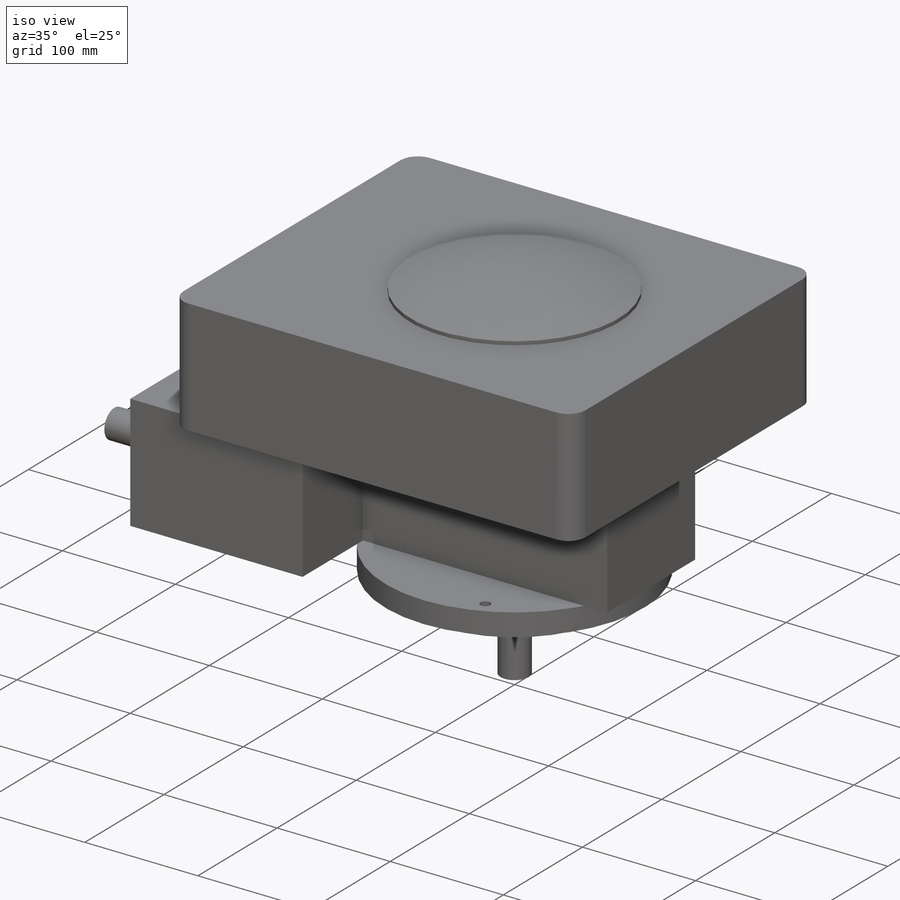
[diagram: iso view]
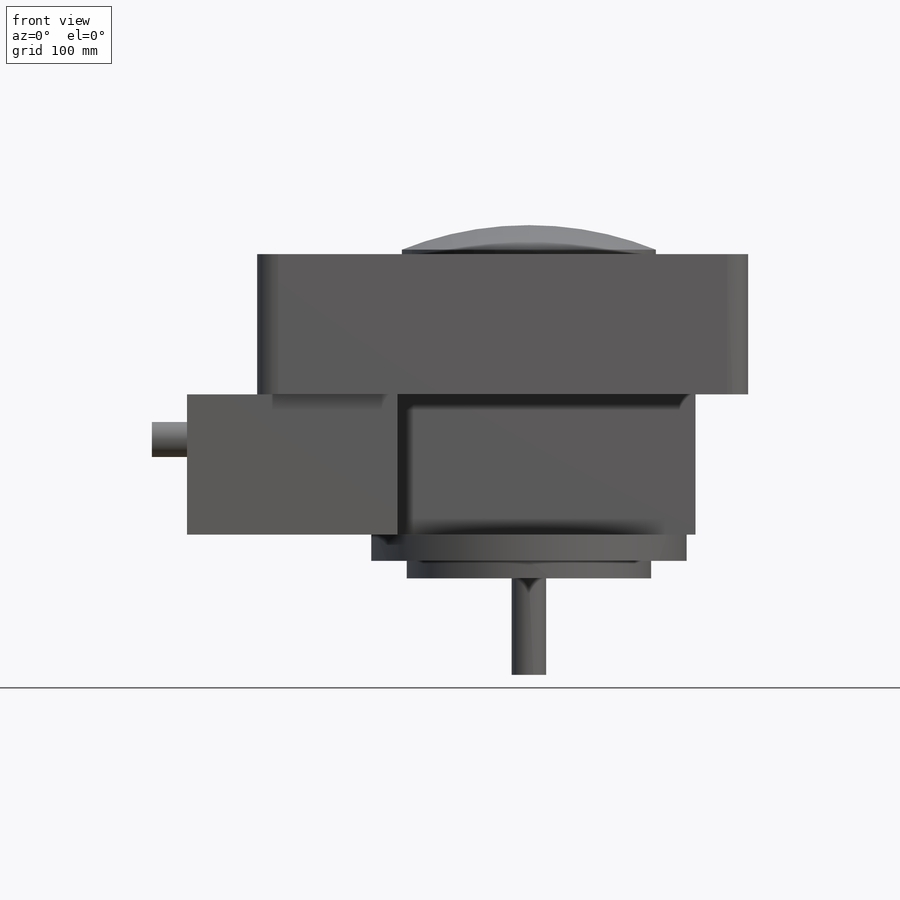
[diagram: front view]
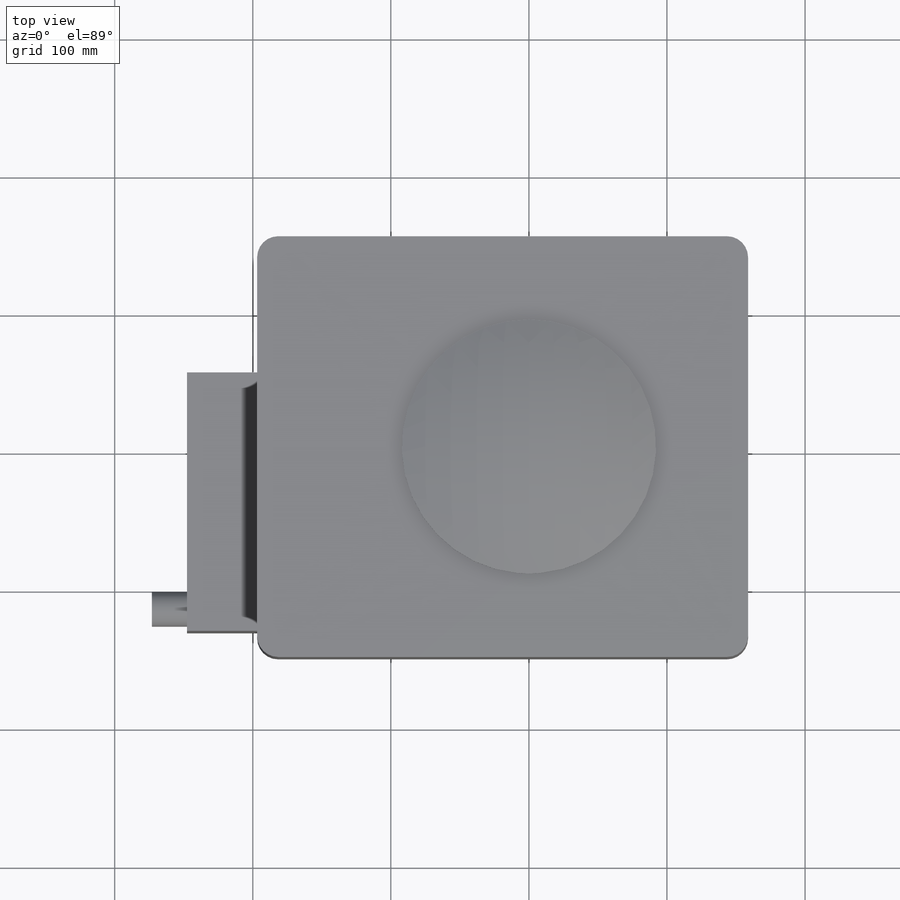
[diagram: top view]
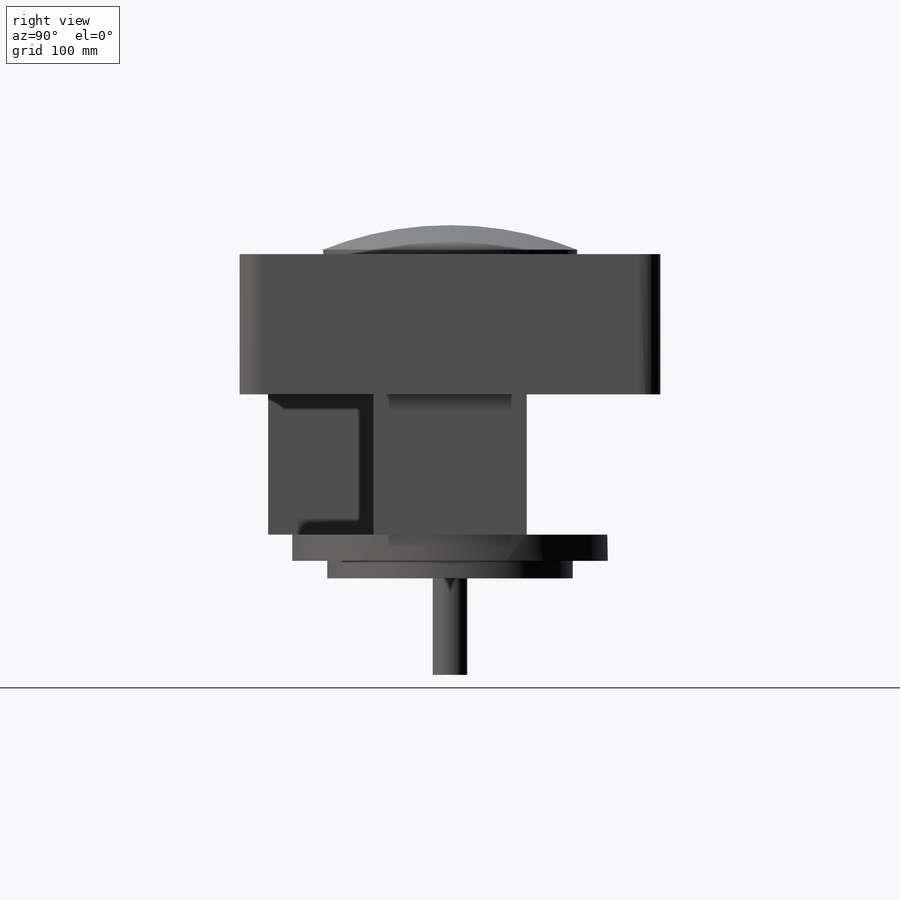
[diagram: right view]
SOLIDWORKS PART (.sldprt)
format: sldprt  version: not decoded by parser v0  size: 463,872 bytes
history: native  units: mm
features: sketch x9, extrude x7, material x1, dome x1, fillet x1, cut_extrude x1 (+12 scaffold rows collapsed)
feature tree (32):
  scaffold x12  (default folders/planes/origin — collapsed)
  material  "Material <not specified>"
  sketch  "Sketch1"  dims[D1=111.125mm D2=368.3mm D3=247.65mm]
  extrude  "Boss-Extrude1"  Depth=101.6mm
  sketch  "Sketch2"  dims[D1=228.6mm]
  extrude  "Boss-Extrude2"  Depth=19.05mm
  sketch  "Sketch3"  dims[D1=175.26mm]
  extrude  "Boss-Extrude3"  Depth=12.7mm
  sketch  "Sketch4"  dims[D1=25.0mm]
  extrude  "Boss-Extrude4"  Depth=69.85mm
  sketch  "Sketch5"  dims[D1=304.8mm D2=355.6mm D3=38.1mm]
  extrude  "Boss-Extrude5"  Depth=101.6mm
  sketch  "Sketch6"  dims[D1=184.15mm]
  extrude  "Boss-Extrude6"  Depth=3.175mm
  dome  "Dome1"
  fillet  "Fillet1"  Radius=15.24mm
  sketch  "Sketch7"  dims[D1=152.4mm]
  extrude  "Boss-Extrude7"  Depth=76.2mm
  sketch  "Sketch8"  dims[D1=25.4mm D5=2.54mm D6=2.54mm D7=5.0mm]
  sketch  "Sketch9"  dims[c1.D1=203.2mm c1.D2=~8.73125mm c1.D3=~8.73125mm c1.D4=~8.73125mm c1.D5=~8.73125mm c1.D6=~8.73125mm c2.D1=~8.73125mm c2.D4=~8.73125mm c2.D6=~8.73125mm c2.D7=~8.73125mm c2.D3=81.28mm c3.D4=60.96mm c3.D5=76.708mm c3.D6=60.96mm c3.D1=66.548mm c4.D4=61.214mm c4.D6=93.472mm c4.D7=39.624mm]
  cut_extrude  "Cut-Extrude1"  [1 undecoded]
decode coverage: 17 of 19 modeling features carry decoded parameters
note: ~ marks probable driven/reference dimensions
note: 1 parameter value undecoded
note: suppression state not decoded; provenance and decode notes live in map.json
